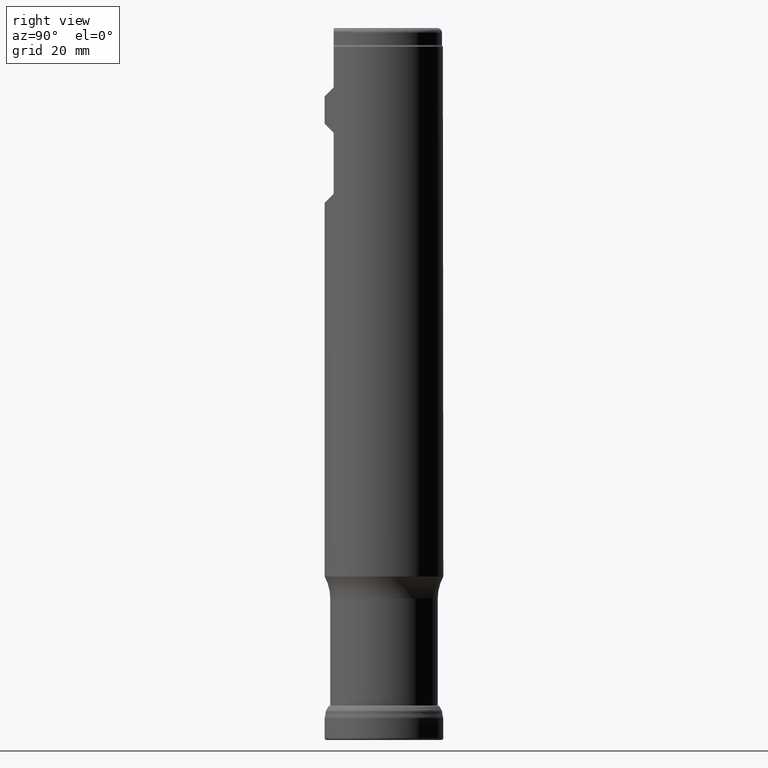
[diagram: clean part render]
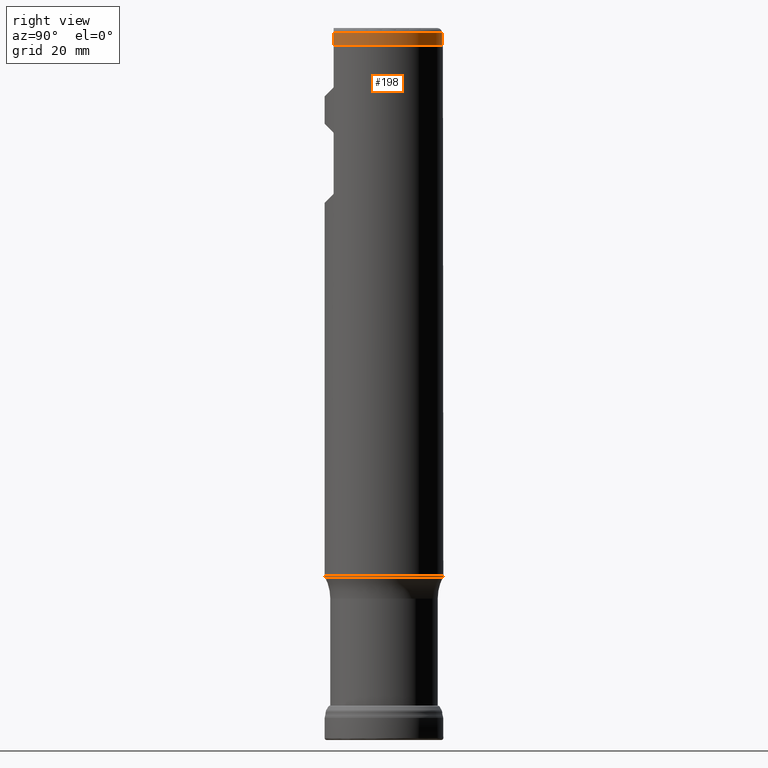
[diagram: same view with one face highlighted and labeled with its STEP entity id]
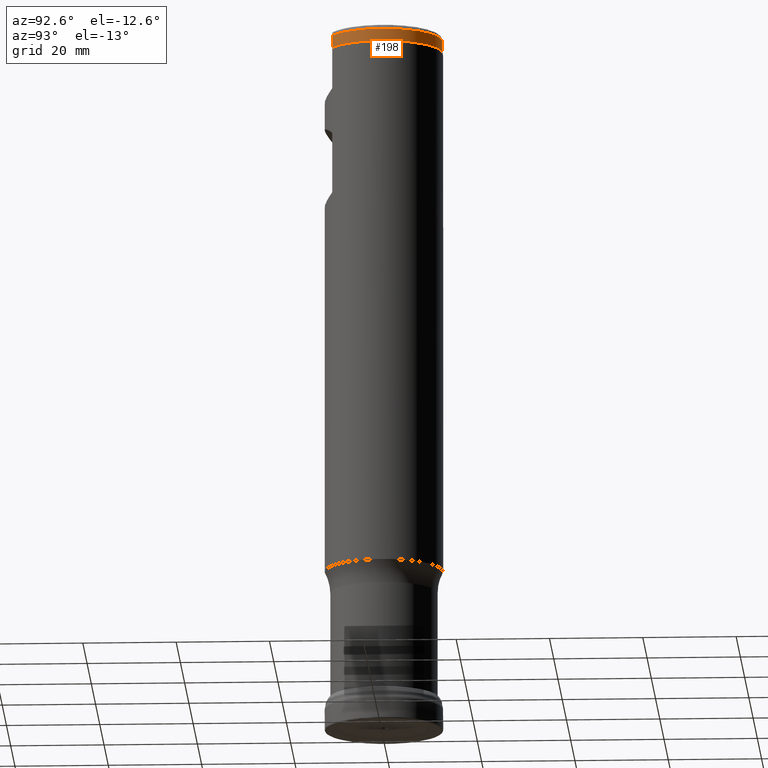
[diagram: same view with one face highlighted and labeled with its STEP entity id]
A machine part, right view. The second image highlights one B-rep face of the part: STEP entity #198.
A second angle (auxiliary view) of the same face is appended — the face is thin or edge-on in the first view.
In plain terms, the highlighted cylindrical surface (partial cylindrical patch) has radius 12.5 mm, axis along (0, 0, 1).
Its self-contained STEP definition (entity closure, byte-faithful):
#162=FACE_OUTER_BOUND('',#384,.T.);
#177=CYLINDRICAL_SURFACE('',#838,12.5);
#198=ADVANCED_FACE('',(#162),#177,.T.);
#254=LINE('',#1431,#273);
#255=LINE('',#1435,#274);
#273=VECTOR('',#945,1.);
#274=VECTOR('',#948,1.);
#384=EDGE_LOOP('',(#490,#491,#492,#493));
#490=ORIENTED_EDGE('',*,*,#685,.F.);
#491=ORIENTED_EDGE('',*,*,#686,.T.);
#492=ORIENTED_EDGE('',*,*,#687,.F.);
#493=ORIENTED_EDGE('',*,*,#684,.T.);
#622=VERTEX_POINT('',#1423);
#623=VERTEX_POINT('',#1428);
#624=VERTEX_POINT('',#1432);
#625=VERTEX_POINT('',#1434);
#684=EDGE_CURVE('',#622,#623,#736,.T.);
#685=EDGE_CURVE('',#624,#623,#254,.T.);
#686=EDGE_CURVE('',#624,#625,#737,.T.);
#687=EDGE_CURVE('',#622,#625,#255,.T.);
#736=CIRCLE('',#835,12.5);
#737=CIRCLE('',#837,12.5);
#835=AXIS2_PLACEMENT_3D('',#1429,#941,#942);
#837=AXIS2_PLACEMENT_3D('',#1433,#946,#947);
#838=AXIS2_PLACEMENT_3D('',#1436,#949,#950);
#941=DIRECTION('',(0.,1.17145536458252E-15,1.));
#942=DIRECTION('',(0.,-1.,2.22044604925031E-15));
#945=DIRECTION('',(0.,-1.17145536458252E-15,-1.));
#946=DIRECTION('',(0.,-1.17145536458252E-15,-1.));
#947=DIRECTION('',(0.,-1.,2.22044604925031E-15));
#948=DIRECTION('',(0.,1.17145536458252E-15,1.));
#949=DIRECTION('',(0.,1.17145536458252E-15,1.));
#950=DIRECTION('',(0.,-1.,1.17145536458252E-15));
#1423=CARTESIAN_POINT('',(6.30221984700628,-10.7949999999998,148.746410161514));
#1428=CARTESIAN_POINT('',(-6.30221984700628,-10.7949999999998,148.746410161514));
#1429=CARTESIAN_POINT('',(0.,1.74249780146098E-13,148.746410161514));
#1431=CARTESIAN_POINT('',(-6.30221984700628,-10.795,1.26458606606684E-14));
#1432=CARTESIAN_POINT('',(-6.30221984700629,-10.7949999999998,151.4));
#1433=CARTESIAN_POINT('',(0.,1.77358342197794E-13,151.4));
#1434=CARTESIAN_POINT('',(6.30221984700628,-10.7949999999998,151.4));
#1435=CARTESIAN_POINT('',(6.30221984700628,-10.795,1.26458606606684E-14));
#1436=CARTESIAN_POINT('',(0.,0.,0.));